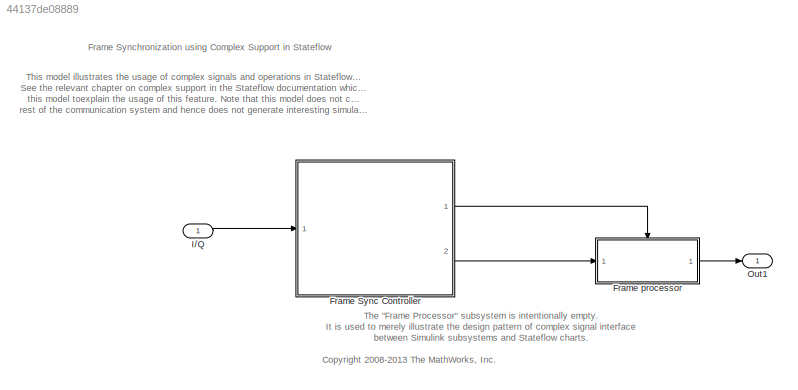
MODEL slx_44137de08889
KIND model
CONFIG AbsTol = auto
CONFIG EnableMultiTasking = on
CONFIG FixedStep = 0.05
CONFIG MaxStep = auto
CONFIG MinStep = auto
CONFIG RelTol = 1e-3
CONFIG SampleTimeConstraint = Unconstrained
CONFIG Solver = FixedStepDiscrete
CONFIG SolverName = FixedStepDiscrete
CONFIG StartTime = 0.0
CONFIG StopTime = 10.0
WORKSPACE source: MAT-file member
WORKSPACE trainSig = [-0.707106781187 -0.707106781187 -0.707106781187 -0.707106781187 -0.707106781187 -0.707106781187 0.707106781187 0.707106781187 -0.707106781187 -0.707106781187 0.707106781187 -0.707106781187 ... (64 elements, 64x1)]
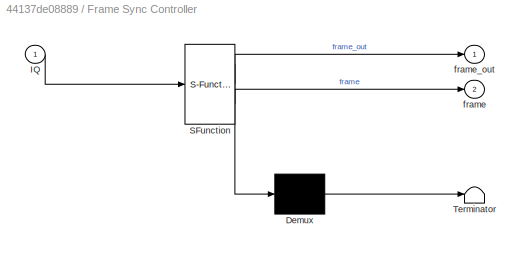
BLOCK [SubSystem] Frame Sync Controller
  ErrorFcn = Stateflow.Translate.translate
  PermitHierarchicalResolution = ExplicitOnly
  Ports = [1, 2]
  RequestExecContextInheritance = off
  SFBlockType = Chart
  TreatAsAtomicUnit = on
  Variant = off
BLOCK [Demux] Frame Sync Controller/ Demux 
  Outputs = 1
  Ports = [1, 1]
BLOCK [S-Function] Frame Sync Controller/ SFunction 
  EnableBusSupport = off
  FunctionName = sf_sfun
  PortCounts = [1 3]
  Ports = [1, 3]
  SFcnIsStateOwnerBlock = off
  SFunctionDeploymentMode = off
  Tag = Stateflow S-Function sf_frame_sync_controller 8
BLOCK [Terminator] Frame Sync Controller/ Terminator 
BLOCK [Outport] Frame Sync Controller/ frame_out
  IconDisplay = Port number
BLOCK [Inport] Frame Sync Controller/IQ
  IconDisplay = Port number
BLOCK [Outport] Frame Sync Controller/frame
  IconDisplay = Port number
  Port = 2
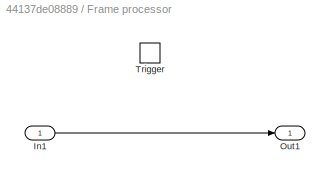
BLOCK [SubSystem] Frame processor
  Ports = [1, 1, 0, 1]
  RequestExecContextInheritance = off
  TreatAsAtomicUnit = on
  Variant = off
BLOCK [Inport] Frame processor/In1
  IconDisplay = Port number
BLOCK [Outport] Frame processor/Out1
  IconDisplay = Port number
BLOCK [TriggerPort] Frame processor/Trigger
  Ports = []
  StatesWhenEnabling = held
  VariantControl = (inherit)
BLOCK [Inport] I//Q
  IconDisplay = Port number
BLOCK [Outport] Out1
  IconDisplay = Port number
ANNOTATION (root): <copyright redacted>
ANNOTATION (root): Frame Synchronization using Complex Support in Stateflow
ANNOTATION (root): The "Frame Processor" subsystem is intentionally empty. It is used to merely illustrate the design pattern of complex signal interface between Simulink subsystems and Stateflow charts.
ANNOTATION (root): This model illustrates the usage of complex signals and operations in Stateflow(R). See the relevant chapter on complex support in the Stateflow documentation which uses this model toexplain the usage of this feature. Note that this model does not contain the rest of the communication system and hence does not generate interesting simulation results.
LINE Frame Sync Controller:1 -> Frame processor:trigger
LINE Frame Sync Controller:2 -> Frame processor:1
LINE Frame processor/In1:1 -> Frame processor/Out1:1
LINE Frame processor:1 -> Out1:1
LINE I//Q:1 -> Frame Sync Controller:1
CHART Frame Sync Controller states=5 transitions=5
  STATE_LABEL 'look_for_sync\nen:\ncorrAbs = 0;\ndu:\n[corr, corrAbs] = correlate(IQ);'
  STATE_LABEL '[y, yabs] = correlate(u)'
  STATE_LABEL 'SCRIPT:\nfunction [y, yabs] = correlate(u)\n\npersistent zi;\n\nB = conj(flipud(trainSig));\nA = 1;\n\nif(isempty(zi))\n    zi = zeros(max(length(A),length(B))-1,1) + complex(0,0);\nend\n\n[y,zi] = filter(B,A,u,zi);\n\nyabs = abs(y);'
  STATE_LABEL '[y, yabs] = correlate(u)'
  STATE_LABEL 'SCRIPT:\nfunction [y, yabs] = correlate(u)\n\npersistent zi;\n\nB = conj(flipud(trainSig));\nA = 1;\n\nif(isempty(zi))\n    zi = zeros(max(length(A),length(B))-1,1) + complex(0,0);\nend\n\n[y,zi] = filter(B,A,u,zi);\n\nyabs = abs(y);'
  STATE_LABEL 'frame_out'
  STATE_LABEL 'get_payload\nen:\nphasor = get_carrier_phase(corr);\nframe[0] = IQ * phasor;\ndu:\nframe[temporalCount(tick)] = IQ * phasor;'
  STATE_LABEL 'y = get_carrier_phase(u)'
  STATE_LABEL 'SCRIPT:\nfunction y = get_carrier_phase(u)\n\ny = exp(-1i*angle(u));\n\n'
  STATE_LABEL 'y = get_carrier_phase(u)'
  STATE_LABEL 'SCRIPT:\nfunction y = get_carrier_phase(u)\n\ny = exp(-1i*angle(u));\n\n'
